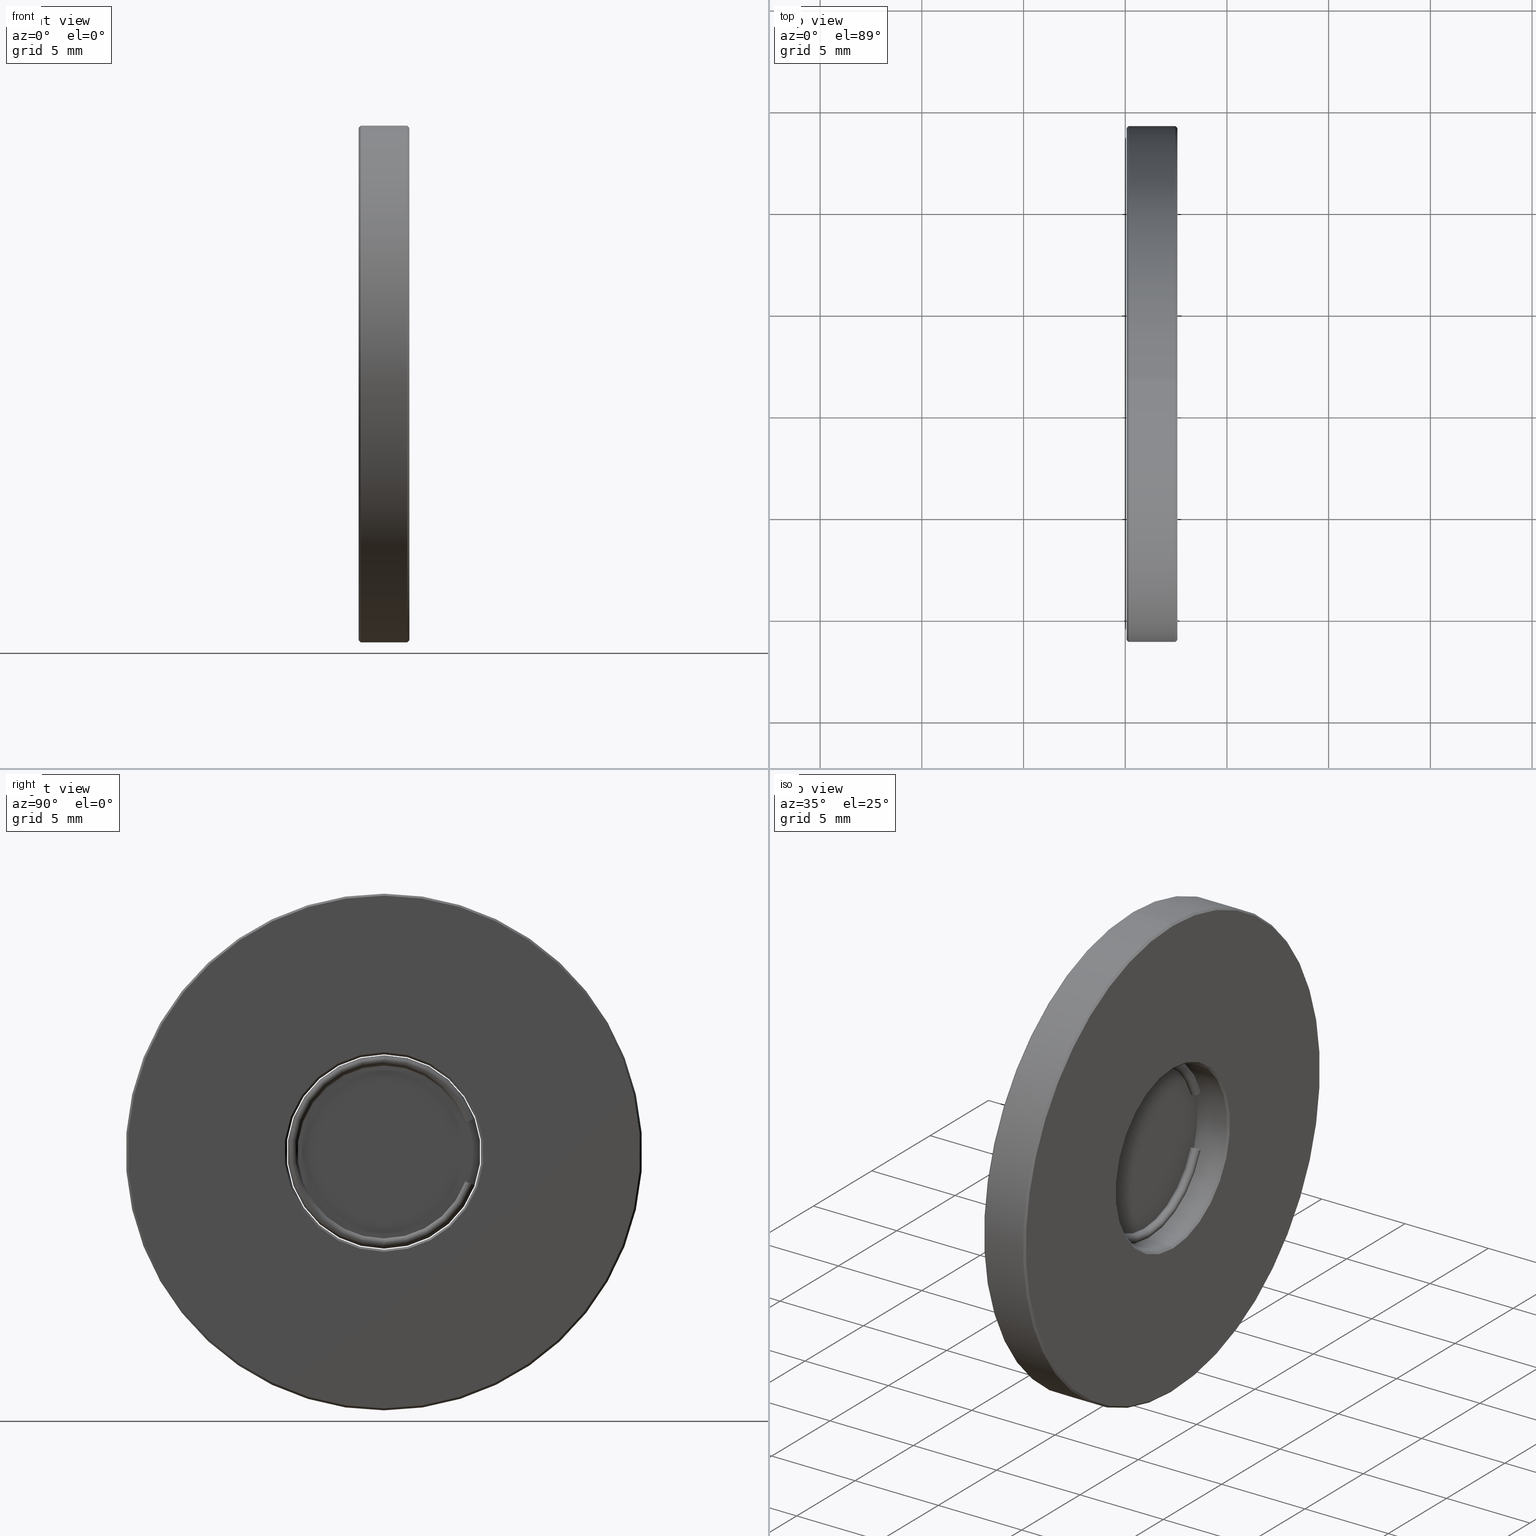
[diagram: canonical four-view strip — front | top / right | iso, engineering-drawing reading convention]
A machine part, canonical four-view strip (front | top / right | iso — engineering-drawing reading convention). The complete STEP part file that produces these views, byte-faithful:
ISO-10303-21;
HEADER;
FILE_DESCRIPTION (( 'STEP AP203' ),
    '1' );
FILE_NAME ('1.5.3.26_ZXO-1.0-30_�������30um��ֱ��25.4��1.0Ӣ�磩.STEP',
    '2021-07-27T01:08:17',
    ( 'China' ),
    ( 'Home' ),
    'SwSTEP 2.0',
    'SolidWorks 2018',
    '' );
FILE_SCHEMA (( 'CONFIG_CONTROL_DESIGN' ));
ENDSEC;

DATA;
#1 = SHAPE_DEFINITION_REPRESENTATION ( #275, #80 ) ;
#2 = ORIENTED_EDGE ( 'NONE', *, *, #723, .F. ) ;
#3 = ADVANCED_FACE ( 'NONE', ( #358 ), #343, .T. ) ;
#4 = EDGE_CURVE ( 'NONE', #362, #690, #654, .T. ) ;
#5 = CARTESIAN_POINT ( 'NONE',  ( -2.434863851253203482, 1.436758841085141070, 25.39999999999999858 ) ) ;
#6 = CARTESIAN_POINT ( 'NONE',  ( -4.934863851253203926, 1.436758841085141514, 21.59999999999999787 ) ) ;
#7 = AXIS2_PLACEMENT_3D ( 'NONE', #519, #462, #154 ) ;
#8 = DIRECTION ( 'NONE',  ( 3.061276722312011406E-15, 1.000000000000000000, 0.0000000000000000000 ) ) ;
#9 = ADVANCED_FACE ( 'NONE', ( #737 ), #104, .F. ) ;
#10 = DIRECTION ( 'NONE',  ( 1.000000000000000000, -2.997602166487921476E-15, -1.332267629309052594E-15 ) ) ;
#11 = FACE_BOUND ( 'NONE', #36, .T. ) ;
#12 = CARTESIAN_POINT ( 'NONE',  ( -4.834863851253204281, 1.436758841085141070, 25.39999999999999858 ) ) ;
#13 = AXIS2_PLACEMENT_3D ( 'NONE', #166, #42, #407 ) ;
#14 = VERTEX_POINT ( 'NONE', #58 ) ;
#15 = VERTEX_POINT ( 'NONE', #732 ) ;
#16 = DIRECTION ( 'NONE',  ( 0.0000000000000000000, 0.0000000000000000000, 1.000000000000000000 ) ) ;
#17 = DIRECTION ( 'NONE',  ( 0.0000000000000000000, 0.0000000000000000000, 1.000000000000000000 ) ) ;
#18 = CC_DESIGN_DATE_AND_TIME_ASSIGNMENT ( #571, #529, ( #484 ) ) ;
#19 = ADVANCED_FACE ( 'NONE', ( #289 ), #457, .T. ) ;
#20 = ADVANCED_FACE ( 'NONE', ( #126 ), #677, .F. ) ;
#21 = LINE ( 'NONE', #83, #465 ) ;
#22 = VERTEX_POINT ( 'NONE', #793 ) ;
#23 = ORIENTED_EDGE ( 'NONE', *, *, #113, .T. ) ;
#24 = APPROVAL_PERSON_ORGANIZATION ( #649, #59, #98 ) ;
#25 = UNCERTAINTY_MEASURE_WITH_UNIT (LENGTH_MEASURE( 1.000000000000000082E-05 ), #532, 'distance_accuracy_value', 'NONE');
#26 = AXIS2_PLACEMENT_3D ( 'NONE', #778, #788, #45 ) ;
#27 = ORIENTED_EDGE ( 'NONE', *, *, #731, .F. ) ;
#28 = DIRECTION ( 'NONE',  ( -1.332267629506340790E-15, -6.581527172670668233E-11, -1.000000000000000000 ) ) ;
#29 = EDGE_CURVE ( 'NONE', #196, #14, #540, .T. ) ;
#30 = VECTOR ( 'NONE', #583, 1000.000000000000114 ) ;
#31 = EDGE_LOOP ( 'NONE', ( #458, #760, #739, #225 ) ) ;
#32 = ORIENTED_EDGE ( 'NONE', *, *, #184, .F. ) ;
#33 = LINE ( 'NONE', #143, #404 ) ;
#34 = CC_DESIGN_PERSON_AND_ORGANIZATION_ASSIGNMENT ( #185, #219, ( #103 ) ) ;
#35 = PERSON ( 'δָ��', 'δָ��', 'δָ��', ('δָ��'), ('δָ��'), ('δָ��') ) ;
#36 = EDGE_LOOP ( 'NONE', ( #541, #773 ) ) ;
#37 = EDGE_LOOP ( 'NONE', ( #282, #333, #467, #32 ) ) ;
#38 = DIRECTION ( 'NONE',  ( 1.000000000000000000, 0.0000000000000000000, 0.0000000000000000000 ) ) ;
#39 = AXIS2_PLACEMENT_3D ( 'NONE', #292, #350, #777 ) ;
#40 = ORIENTED_EDGE ( 'NONE', *, *, #147, .F. ) ;
#41 = DIRECTION ( 'NONE',  ( -1.332267629506340790E-15, -6.581527172670668233E-11, -1.000000000000000000 ) ) ;
#42 = DIRECTION ( 'NONE',  ( 1.000000000000000000, 0.0000000000000000000, 0.0000000000000000000 ) ) ;
#43 = VERTEX_POINT ( 'NONE', #544 ) ;
#44 = DIRECTION ( 'NONE',  ( -0.7071067811865414665, 8.659560562355008046E-17, -0.7071067811865536790 ) ) ;
#45 = DIRECTION ( 'NONE',  ( -1.332267629506340790E-15, -6.581527172670668233E-11, -1.000000000000000000 ) ) ;
#46 = AXIS2_PLACEMENT_3D ( 'NONE', #12, #447, #135 ) ;
#47 = VERTEX_POINT ( 'NONE', #490 ) ;
#48 = COORDINATED_UNIVERSAL_TIME_OFFSET ( 8, 0, .AHEAD. ) ;
#49 = EDGE_CURVE ( 'NONE', #511, #105, #194, .T. ) ;
#50 = AXIS2_PLACEMENT_3D ( 'NONE', #570, #449, #252 ) ;
#51 = DIRECTION ( 'NONE',  ( 1.000000000000000000, 0.0000000000000000000, 0.0000000000000000000 ) ) ;
#52 = LINE ( 'NONE', #596, #526 ) ;
#53 = CARTESIAN_POINT ( 'NONE',  ( -4.284863851253205347, 1.436758841085140181, 25.39999999999999858 ) ) ;
#54 = ORIENTED_EDGE ( 'NONE', *, *, #363, .F. ) ;
#55 = VERTEX_POINT ( 'NONE', #667 ) ;
#56 = DIRECTION ( 'NONE',  ( 1.000000000000000000, -0.0000000000000000000, -0.0000000000000000000 ) ) ;
#57 = ADVANCED_FACE ( 'NONE', ( #521, #438 ), #125, .F. ) ;
#58 = CARTESIAN_POINT ( 'NONE',  ( -4.334863851253203393, 1.436758841085141736, 30.19999999999999929 ) ) ;
#59 = APPROVAL ( #474, 'δָ��' ) ;
#60 = DIRECTION ( 'NONE',  ( -1.000000000000000000, -0.0000000000000000000, -0.0000000000000000000 ) ) ;
#61 = DIRECTION ( 'NONE',  ( -1.000000000000000000, -0.0000000000000000000, -0.0000000000000000000 ) ) ;
#62 = ORIENTED_EDGE ( 'NONE', *, *, #742, .F. ) ;
#63 = LINE ( 'NONE', #188, #156 ) ;
#64 = ORIENTED_EDGE ( 'NONE', *, *, #269, .F. ) ;
#65 = CARTESIAN_POINT ( 'NONE',  ( -4.934863851253203926, 1.436758841085141070, 25.39999999999999858 ) ) ;
#66 = VERTEX_POINT ( 'NONE', #137 ) ;
#67 = CARTESIAN_POINT ( 'NONE',  ( -2.534863851253202682, 1.436758841085141736, 30.19999999999999929 ) ) ;
#68 = DIRECTION ( 'NONE',  ( 0.0000000000000000000, 0.0000000000000000000, -1.000000000000000000 ) ) ;
#69 = DIRECTION ( 'NONE',  ( -1.000000000000000000, 0.0000000000000000000, 0.0000000000000000000 ) ) ;
#70 = COORDINATED_UNIVERSAL_TIME_OFFSET ( 8, 0, .AHEAD. ) ;
#71 = ORIENTED_EDGE ( 'NONE', *, *, #206, .F. ) ;
#72 = PLANE ( 'NONE',  #203 ) ;
#73 = DIRECTION ( 'NONE',  ( 0.0000000000000000000, 0.0000000000000000000, 1.000000000000000000 ) ) ;
#74 = CIRCLE ( 'NONE', #395, 4.750000000000000888 ) ;
#75 = DIRECTION ( 'NONE',  ( -1.054662389422715826E-17, 0.3420201432638126371, -0.9396926208084220855 ) ) ;
#76 = ORIENTED_EDGE ( 'NONE', *, *, #341, .F. ) ;
#77 = AXIS2_PLACEMENT_3D ( 'NONE', #116, #366, #316 ) ;
#78 = DIRECTION ( 'NONE',  ( 1.000000000000000000, -2.997602166487921476E-15, -1.332267629309052594E-15 ) ) ;
#79 = ORIENTED_EDGE ( 'NONE', *, *, #302, .T. ) ;
#80 = MANIFOLD_SURFACE_SHAPE_REPRESENTATION ( '1.5.3.26_ZXO-1.0-30_�������30um��ֱ��25.4��1.0Ӣ�磩', ( #671, #770 ), #456 ) ;
#81 = AXIS2_PLACEMENT_3D ( 'NONE', #195, #676, #557 ) ;
#82 = DIRECTION ( 'NONE',  ( 2.305737067885818465E-15, -0.3420201433875043051, -0.9396926207634020978 ) ) ;
#83 = CARTESIAN_POINT ( 'NONE',  ( -4.934863851253203926, 1.436758841085141514, 29.10000000000000142 ) ) ;
#84 = CIRCLE ( 'NONE', #347, 0.01500000000000112355 ) ;
#85 = CIRCLE ( 'NONE', #587, 4.899999999999997691 ) ;
#86 = ORIENTED_EDGE ( 'NONE', *, *, #152, .F. ) ;
#87 = DIRECTION ( 'NONE',  ( 1.000000000000000000, -0.0000000000000000000, -0.0000000000000000000 ) ) ;
#88 = ORIENTED_EDGE ( 'NONE', *, *, #152, .T. ) ;
#89 = OPEN_SHELL ( 'NONE', ( #246 ) ) ;
#90 = CARTESIAN_POINT ( 'NONE',  ( -2.434863851253203482, 1.436758841085141736, 30.29999999999999716 ) ) ;
#91 = CIRCLE ( 'NONE', #241, 4.750000000000000888 ) ;
#92 = AXIS2_PLACEMENT_3D ( 'NONE', #372, #229, #123 ) ;
#93 = AXIS2_PLACEMENT_3D ( 'NONE', #272, #265, #278 ) ;
#94 = CIRCLE ( 'NONE', #648, 3.700000000000001954 ) ;
#95 = EDGE_CURVE ( 'NONE', #690, #420, #146, .T. ) ;
#96 = DIRECTION ( 'NONE',  ( 3.469446951953611033E-15, -0.9396926207634005435, 0.3420201433875083574 ) ) ;
#97 = ORIENTED_EDGE ( 'NONE', *, *, #208, .T. ) ;
#98 = APPROVAL_ROLE ( '' ) ;
#99 = DIRECTION ( 'NONE',  ( 1.000000000000000000, -0.0000000000000000000, -0.0000000000000000000 ) ) ;
#100 = DIRECTION ( 'NONE',  ( 0.0000000000000000000, 0.0000000000000000000, 1.000000000000000000 ) ) ;
#101 = PERSON_AND_ORGANIZATION_ROLE ( 'creator' ) ;
#102 = LINE ( 'NONE', #6, #513 ) ;
#103 = PRODUCT_DEFINITION_FORMATION_WITH_SPECIFIED_SOURCE ( '�κ�', '', #641, .NOT_KNOWN. ) ;
#104 = CONICAL_SURFACE ( 'NONE', #392, 3.800000000000001155, 0.7853981633974439491 ) ;
#105 = VERTEX_POINT ( 'NONE', #679 ) ;
#106 = VERTEX_POINT ( 'NONE', #239 ) ;
#107 = DIRECTION ( 'NONE',  ( 1.000000000000000000, -2.997602166487921476E-15, -1.332267629309052594E-15 ) ) ;
#108 = AXIS2_PLACEMENT_3D ( 'NONE', #244, #377, #499 ) ;
#109 = CONICAL_SURFACE ( 'NONE', #124, 3.800000000000001155, 0.7853981633974439491 ) ;
#110 = DIRECTION ( 'NONE',  ( 1.000000000000000000, 0.0000000000000000000, 0.0000000000000000000 ) ) ;
#111 =( NAMED_UNIT ( * ) PLANE_ANGLE_UNIT ( ) SI_UNIT ( $, .RADIAN. ) );
#112 = DIRECTION ( 'NONE',  ( 0.0000000000000000000, 0.0000000000000000000, -1.000000000000000000 ) ) ;
#113 = EDGE_CURVE ( 'NONE', #489, #420, #713, .T. ) ;
#114 = LINE ( 'NONE', #627, #607 ) ;
#115 = EDGE_LOOP ( 'NONE', ( #527, #327, #441, #181 ) ) ;
#116 = CARTESIAN_POINT ( 'NONE',  ( -18.51131405003491537, 1.436758841085141070, 25.39999999999999858 ) ) ;
#117 = PERSON_AND_ORGANIZATION ( #35, #549 ) ;
#118 = DIRECTION ( 'NONE',  ( 1.000000000000000000, 0.0000000000000000000, 0.0000000000000000000 ) ) ;
#119 = AXIS2_PLACEMENT_3D ( 'NONE', #324, #199, #381 ) ;
#120 = VECTOR ( 'NONE', #655, 1000.000000000000000 ) ;
#121 = CARTESIAN_POINT ( 'NONE',  ( -2.434863851253203482, 1.436758841085142402, 12.79999999999999716 ) ) ;
#122 = FACE_OUTER_BOUND ( 'NONE', #277, .T. ) ;
#123 = DIRECTION ( 'NONE',  ( 0.0000000000000000000, 0.0000000000000000000, -1.000000000000000000 ) ) ;
#124 = AXIS2_PLACEMENT_3D ( 'NONE', #279, #640, #281 ) ;
#125 = PLANE ( 'NONE',  #597 ) ;
#126 = FACE_OUTER_BOUND ( 'NONE', #235, .T. ) ;
#127 = CARTESIAN_POINT ( 'NONE',  ( -4.934863851253203926, 1.436758841085141070, 25.39999999999999858 ) ) ;
#128 = VERTEX_POINT ( 'NONE', #201 ) ;
#129 = CIRCLE ( 'NONE', #468, 4.750000000000000888 ) ;
#130 = APPROVAL_PERSON_ORGANIZATION ( #117, #213, #416 ) ;
#131 = CARTESIAN_POINT ( 'NONE',  ( -4.934863851253203926, 1.436758841085141070, 25.39999999999999858 ) ) ;
#132 = DIRECTION ( 'NONE',  ( 2.764278068315865563E-15, -0.9396926207634013206, 0.3420201433875065256 ) ) ;
#133 = TOROIDAL_SURFACE ( 'NONE', #782, 4.500000000000001776, 0.2499999999999994726 ) ;
#134 = ADVANCED_FACE ( 'NONE', ( #413 ), #675, .T. ) ;
#135 = DIRECTION ( 'NONE',  ( 0.0000000000000000000, 0.0000000000000000000, -1.000000000000000000 ) ) ;
#136 = EDGE_CURVE ( 'NONE', #375, #294, #554, .T. ) ;
#137 = CARTESIAN_POINT ( 'NONE',  ( -4.034863851253246203, 1.436758840772518919, 20.64999999999998437 ) ) ;
#138 = APPROVAL ( #651, 'δָ��' ) ;
#139 = VERTEX_POINT ( 'NONE', #90 ) ;
#140 = EDGE_CURVE ( 'NONE', #775, #220, #270, .T. ) ;
#141 = ADVANCED_FACE ( 'NONE', ( #396 ), #559, .T. ) ;
#142 = EDGE_LOOP ( 'NONE', ( #623, #638, #530, #71 ) ) ;
#143 = CARTESIAN_POINT ( 'NONE',  ( -4.934863851253203926, 1.436758841085141070, 21.69999999999999574 ) ) ;
#144 = ADVANCED_FACE ( 'NONE', ( #763 ), #109, .F. ) ;
#145 = CIRCLE ( 'NONE', #7, 0.2500000000000002220 ) ;
#146 = CIRCLE ( 'NONE', #486, 0.2500000000000002220 ) ;
#147 = EDGE_CURVE ( 'NONE', #106, #775, #616, .T. ) ;
#148 = EDGE_LOOP ( 'NONE', ( #339, #440 ) ) ;
#149 = CC_DESIGN_APPROVAL ( #138, ( #103 ) ) ;
#150 = ORIENTED_EDGE ( 'NONE', *, *, #298, .F. ) ;
#151 = CARTESIAN_POINT ( 'NONE',  ( -4.034863851253234657, 1.436758841397764552, 30.14999999999998437 ) ) ;
#152 = EDGE_CURVE ( 'NONE', #55, #511, #594, .T. ) ;
#153 = CARTESIAN_POINT ( 'NONE',  ( -4.034863851253239986, 1.436758841085141514, 25.39999999999998437 ) ) ;
#154 = DIRECTION ( 'NONE',  ( 0.0000000000000000000, -6.581540867855999654E-11, -1.000000000000000000 ) ) ;
#155 = VECTOR ( 'NONE', #605, 1000.000000000000000 ) ;
#156 = VECTOR ( 'NONE', #741, 1000.000000000000000 ) ;
#157 = ORIENTED_EDGE ( 'NONE', *, *, #515, .T. ) ;
#158 = ORIENTED_EDGE ( 'NONE', *, *, #400, .T. ) ;
#159 = DIRECTION ( 'NONE',  ( -2.997602166400238009E-15, -1.000000000000000000, 6.581526990068181500E-11 ) ) ;
#160 = PLANE ( 'NONE',  #615 ) ;
#161 = CARTESIAN_POINT ( 'NONE',  ( -4.834863851253204281, 1.436758841085141070, 12.69999999999999929 ) ) ;
#162 = AXIS2_PLACEMENT_3D ( 'NONE', #243, #56, #233 ) ;
#163 = CIRCLE ( 'NONE', #238, 12.69999999999999929 ) ;
#164 = EDGE_CURVE ( 'NONE', #690, #66, #129, .T. ) ;
#165 = ORIENTED_EDGE ( 'NONE', *, *, #731, .T. ) ;
#166 = CARTESIAN_POINT ( 'NONE',  ( -4.934863851253203926, 1.436758841085141070, 25.39999999999999858 ) ) ;
#167 = DIRECTION ( 'NONE',  ( 0.7071067811865414665, 0.0000000000000000000, -0.7071067811865536790 ) ) ;
#168 = EDGE_LOOP ( 'NONE', ( #798, #792, #97, #40 ) ) ;
#169 = AXIS2_PLACEMENT_3D ( 'NONE', #131, #620, #68 ) ;
#170 = ORIENTED_EDGE ( 'NONE', *, *, #714, .T. ) ;
#171 = CALENDAR_DATE ( 2021, 27, 7 ) ;
#172 = CARTESIAN_POINT ( 'NONE',  ( -4.334863851253203393, 1.436758841085141070, 21.69999999999999574 ) ) ;
#173 = APPLICATION_CONTEXT ( 'configuration controlled 3d designs of mechanical parts and assemblies' ) ;
#174 = VERTEX_POINT ( 'NONE', #397 ) ;
#175 = AXIS2_PLACEMENT_3D ( 'NONE', #266, #69, #16 ) ;
#176 = ORIENTED_EDGE ( 'NONE', *, *, #322, .T. ) ;
#177 = CC_DESIGN_PERSON_AND_ORGANIZATION_ASSIGNMENT ( #482, #644, ( #103 ) ) ;
#178 = CIRCLE ( 'NONE', #287, 0.01500000000000112355 ) ;
#179 = DIRECTION ( 'NONE',  ( 0.0000000000000000000, 0.0000000000000000000, -1.000000000000000000 ) ) ;
#180 = OPEN_SHELL ( 'NONE', ( #569, #190, #3, #756, #197, #20, #681, #673 ) ) ;
#181 = ORIENTED_EDGE ( 'NONE', *, *, #113, .F. ) ;
#182 = DIRECTION ( 'NONE',  ( 0.7071067811865414665, 8.659560562355009279E-17, 0.7071067811865536790 ) ) ;
#183 = CARTESIAN_POINT ( 'NONE',  ( -4.284863851253205347, 1.436758841085140181, 25.39999999999999858 ) ) ;
#184 = EDGE_CURVE ( 'NONE', #15, #174, #460, .T. ) ;
#185 = PERSON_AND_ORGANIZATION ( #35, #549 ) ;
#186 = CARTESIAN_POINT ( 'NONE',  ( -4.034863851253226663, 5.430452479520951670, 26.85358560887114621 ) ) ;
#187 = AXIS2_PLACEMENT_3D ( 'NONE', #307, #668, #800 ) ;
#188 = CARTESIAN_POINT ( 'NONE',  ( -18.51131405003491537, 1.436758841085141070, 20.60000000000000142 ) ) ;
#189 = CARTESIAN_POINT ( 'NONE',  ( -4.034863851253261302, 5.665375634723053722, 26.93909064468709857 ) ) ;
#190 = ADVANCED_FACE ( 'NONE', ( #295 ), #785, .T. ) ;
#191 = CARTESIAN_POINT ( 'NONE',  ( -2.534863851253199574, 1.436758841085141070, 25.39999999999999858 ) ) ;
#192 = EDGE_CURVE ( 'NONE', #106, #66, #579, .T. ) ;
#193 = DIRECTION ( 'NONE',  ( 1.000000000000000000, -2.997602166487921476E-15, -1.332267629309052594E-15 ) ) ;
#194 = LINE ( 'NONE', #558, #779 ) ;
#195 = CARTESIAN_POINT ( 'NONE',  ( -4.934863851253203926, 1.436758841085141070, 25.39999999999999858 ) ) ;
#196 = VERTEX_POINT ( 'NONE', #525 ) ;
#197 = ADVANCED_FACE ( 'NONE', ( #442 ), #745, .T. ) ;
#198 = CARTESIAN_POINT ( 'NONE',  ( -4.034863851253261302, 5.665375634723053722, 26.93909064468709857 ) ) ;
#199 = DIRECTION ( 'NONE',  ( 1.000000000000000000, -0.0000000000000000000, -0.0000000000000000000 ) ) ;
#200 = CONICAL_SURFACE ( 'NONE', #703, 12.69999999999999929, 0.7853981633974569387 ) ;
#201 = CARTESIAN_POINT ( 'NONE',  ( -4.834863851253201616, 1.436758841085141070, 21.69999999999999574 ) ) ;
#202 = DIRECTION ( 'NONE',  ( 3.599659071901011181E-15, -0.9396926208084229737, -0.3420201432638104166 ) ) ;
#203 = AXIS2_PLACEMENT_3D ( 'NONE', #198, #522, #202 ) ;
#204 = ORIENTED_EDGE ( 'NONE', *, *, #305, .T. ) ;
#205 = LOCAL_TIME ( 9, 8, 17.00000000000000000, #48 ) ;
#206 = EDGE_CURVE ( 'NONE', #420, #106, #250, .T. ) ;
#207 = VERTEX_POINT ( 'NONE', #711 ) ;
#208 = EDGE_CURVE ( 'NONE', #220, #775, #419, .T. ) ;
#209 = DIRECTION ( 'NONE',  ( 3.469446951953611033E-15, -0.9396926207634005435, 0.3420201433875083574 ) ) ;
#210 = ORIENTED_EDGE ( 'NONE', *, *, #634, .F. ) ;
#211 = AXIS2_PLACEMENT_3D ( 'NONE', #700, #159, #535 ) ;
#212 = CARTESIAN_POINT ( 'NONE',  ( -4.034863851253261302, 5.665375634520459336, 23.86090935475617059 ) ) ;
#213 = APPROVAL ( #591, 'δָ��' ) ;
#214 = EDGE_CURVE ( 'NONE', #715, #511, #325, .T. ) ;
#215 = FACE_OUTER_BOUND ( 'NONE', #759, .T. ) ;
#216 = CARTESIAN_POINT ( 'NONE',  ( -2.434863851253203038, 1.436758841085141736, 30.29999999999999716 ) ) ;
#217 = VERTEX_POINT ( 'NONE', #705 ) ;
#218 = CARTESIAN_POINT ( 'NONE',  ( -4.284863851253205347, 1.436758841085140181, 25.39999999999999858 ) ) ;
#219 = PERSON_AND_ORGANIZATION_ROLE ( 'creator' ) ;
#220 = VERTEX_POINT ( 'NONE', #222 ) ;
#221 = DIRECTION ( 'NONE',  ( 1.000000000000000000, 0.0000000000000000000, 0.0000000000000000000 ) ) ;
#222 = CARTESIAN_POINT ( 'NONE',  ( -4.034863851253229328, 5.900298789711298397, 23.77540431890929895 ) ) ;
#223 = AXIS2_PLACEMENT_3D ( 'NONE', #660, #237, #662 ) ;
#224 = CONICAL_SURFACE ( 'NONE', #162, 12.69999999999999929, 0.7853981633974569387 ) ;
#225 = ORIENTED_EDGE ( 'NONE', *, *, #471, .F. ) ;
#226 = CARTESIAN_POINT ( 'NONE',  ( -4.034863851253239986, 1.436758841085141514, 25.39999999999998437 ) ) ;
#227 = DIRECTION ( 'NONE',  ( 2.921639538487253472E-15, 1.000000000000000000, 0.0000000000000000000 ) ) ;
#228 = EDGE_CURVE ( 'NONE', #14, #196, #771, .T. ) ;
#229 = DIRECTION ( 'NONE',  ( 1.000000000000000000, -0.0000000000000000000, -0.0000000000000000000 ) ) ;
#230 = APPLICATION_PROTOCOL_DEFINITION ( 'international standard', 'config_control_design', 1994, #173 ) ;
#231 = APPROVAL_DATE_TIME ( #452, #138 ) ;
#232 = EDGE_CURVE ( 'NONE', #501, #174, #599, .T. ) ;
#233 = DIRECTION ( 'NONE',  ( 0.0000000000000000000, 0.0000000000000000000, -1.000000000000000000 ) ) ;
#234 = CONICAL_SURFACE ( 'NONE', #93, 4.899999999999997691, 0.7853981633974439491 ) ;
#235 = EDGE_LOOP ( 'NONE', ( #510, #631 ) ) ;
#236 = DIRECTION ( 'NONE',  ( 1.000000000000000000, 0.0000000000000000000, 0.0000000000000000000 ) ) ;
#237 = DIRECTION ( 'NONE',  ( 1.000000000000000000, 0.0000000000000000000, 0.0000000000000000000 ) ) ;
#238 = AXIS2_PLACEMENT_3D ( 'NONE', #323, #555, #563 ) ;
#239 = CARTESIAN_POINT ( 'NONE',  ( -4.034863851253239986, 1.436758840805426596, 21.14999999999998437 ) ) ;
#240 = EDGE_CURVE ( 'NONE', #578, #139, #637, .T. ) ;
#241 = AXIS2_PLACEMENT_3D ( 'NONE', #183, #110, #321 ) ;
#242 = CYLINDRICAL_SURFACE ( 'NONE', #724, 4.799999999999998934 ) ;
#243 = CARTESIAN_POINT ( 'NONE',  ( -4.834863851253204281, 1.436758841085141070, 25.39999999999999858 ) ) ;
#244 = CARTESIAN_POINT ( 'NONE',  ( -2.434863851253203038, 1.436758841085141070, 25.39999999999999858 ) ) ;
#245 = ORIENTED_EDGE ( 'NONE', *, *, #572, .T. ) ;
#246 = ADVANCED_FACE ( 'NONE', ( #656, #11 ), #160, .T. ) ;
#247 = ORIENTED_EDGE ( 'NONE', *, *, #322, .F. ) ;
#248 = DIRECTION ( 'NONE',  ( 3.469446951953614189E-15, -0.9396926208084209753, -0.3420201432638159122 ) ) ;
#249 = DIRECTION ( 'NONE',  ( -1.000000000000000000, 0.0000000000000000000, 0.0000000000000000000 ) ) ;
#250 = CIRCLE ( 'NONE', #576, 4.250000000000001776 ) ;
#251 = CARTESIAN_POINT ( 'NONE',  ( -4.034863851253239986, 1.436758841085141514, 25.39999999999998437 ) ) ;
#252 = DIRECTION ( 'NONE',  ( 0.0000000000000000000, 0.0000000000000000000, 1.000000000000000000 ) ) ;
#253 = EDGE_CURVE ( 'NONE', #43, #361, #472, .T. ) ;
#254 = LINE ( 'NONE', #435, #476 ) ;
#255 = ADVANCED_FACE ( 'NONE', ( #434 ), #301, .F. ) ;
#256 = DIRECTION ( 'NONE',  ( 0.0000000000000000000, 0.0000000000000000000, -1.000000000000000000 ) ) ;
#257 = PRODUCT_RELATED_PRODUCT_CATEGORY ( 'detail', '', ( #641 ) ) ;
#258 = EDGE_CURVE ( 'NONE', #578, #697, #453, .T. ) ;
#259 = CARTESIAN_POINT ( 'NONE',  ( -4.034863851253245315, 1.436758841381310825, 29.89999999999998437 ) ) ;
#260 = ORIENTED_EDGE ( 'NONE', *, *, #797, .F. ) ;
#261 = DIRECTION ( 'NONE',  ( 1.000000000000000000, 0.0000000000000000000, 0.0000000000000000000 ) ) ;
#262 = CARTESIAN_POINT ( 'NONE',  ( -4.034863851253239986, 1.436758841085141514, 25.39999999999998437 ) ) ;
#263 = CARTESIAN_POINT ( 'NONE',  ( -4.284863851253205347, 1.436758841085140181, 30.14999999999999858 ) ) ;
#264 = DATE_AND_TIME ( #754, #431 ) ;
#265 = DIRECTION ( 'NONE',  ( 1.000000000000000000, -0.0000000000000000000, -0.0000000000000000000 ) ) ;
#266 = CARTESIAN_POINT ( 'NONE',  ( -2.434863851253203482, 1.436758841085141070, 25.39999999999999858 ) ) ;
#267 = CARTESIAN_POINT ( 'NONE',  ( -4.934863851253203926, 1.436758841085141070, 25.39999999999999858 ) ) ;
#268 = FACE_OUTER_BOUND ( 'NONE', #740, .T. ) ;
#269 = EDGE_CURVE ( 'NONE', #508, #715, #409, .T. ) ;
#270 = CIRCLE ( 'NONE', #768, 0.2500000000000002220 ) ;
#271 = CARTESIAN_POINT ( 'NONE',  ( -4.334863851253203393, 1.436758841085141070, 25.39999999999999858 ) ) ;
#272 = CARTESIAN_POINT ( 'NONE',  ( -2.434863851253203038, 1.436758841085141070, 25.39999999999999858 ) ) ;
#273 = AXIS2_PLACEMENT_3D ( 'NONE', #624, #383, #256 ) ;
#274 = ORIENTED_EDGE ( 'NONE', *, *, #136, .F. ) ;
#275 = PRODUCT_DEFINITION_SHAPE ( 'NONE', 'NONE',  #484 ) ;
#276 = AXIS2_PLACEMENT_3D ( 'NONE', #428, #433, #670 ) ;
#277 = EDGE_LOOP ( 'NONE', ( #592, #506, #625, #799 ) ) ;
#278 = DIRECTION ( 'NONE',  ( 0.0000000000000000000, 0.0000000000000000000, -1.000000000000000000 ) ) ;
#279 = CARTESIAN_POINT ( 'NONE',  ( -4.934863851253203926, 1.436758841085141070, 25.39999999999999858 ) ) ;
#280 = FACE_OUTER_BOUND ( 'NONE', #610, .T. ) ;
#281 = DIRECTION ( 'NONE',  ( 0.0000000000000000000, 0.0000000000000000000, 1.000000000000000000 ) ) ;
#282 = ORIENTED_EDGE ( 'NONE', *, *, #572, .F. ) ;
#283 = PERSON_AND_ORGANIZATION ( #35, #549 ) ;
#284 = LINE ( 'NONE', #507, #120 ) ;
#285 = CARTESIAN_POINT ( 'NONE',  ( -4.034863851253261302, 5.665375634520459336, 23.86090935475617059 ) ) ;
#286 = CARTESIAN_POINT ( 'NONE',  ( -4.034863851253239986, 1.436758841085141514, 25.39999999999998437 ) ) ;
#287 = AXIS2_PLACEMENT_3D ( 'NONE', #682, #749, #17 ) ;
#288 = FACE_OUTER_BOUND ( 'NONE', #664, .T. ) ;
#289 = FACE_OUTER_BOUND ( 'NONE', #646, .T. ) ;
#290 = AXIS2_PLACEMENT_3D ( 'NONE', #796, #436, #497 ) ;
#291 = ORIENTED_EDGE ( 'NONE', *, *, #4, .F. ) ;
#292 = CARTESIAN_POINT ( 'NONE',  ( -4.334863851253203393, 1.436758841085141070, 25.39999999999999858 ) ) ;
#293 = APPLICATION_PROTOCOL_DEFINITION ( 'international standard', 'config_control_design', 1994, #360 ) ;
#294 = VERTEX_POINT ( 'NONE', #319 ) ;
#295 = FACE_OUTER_BOUND ( 'NONE', #142, .T. ) ;
#296 = PERSON_AND_ORGANIZATION ( #35, #549 ) ;
#297 = DIRECTION ( 'NONE',  ( 0.0000000000000000000, 0.0000000000000000000, -1.000000000000000000 ) ) ;
#298 = EDGE_CURVE ( 'NONE', #174, #15, #604, .T. ) ;
#299 = MECHANICAL_CONTEXT ( 'NONE', #173, 'mechanical' ) ;
#300 = CIRCLE ( 'NONE', #46, 12.69999999999999929 ) ;
#301 = CONICAL_SURFACE ( 'NONE', #108, 4.899999999999997691, 0.7853981633974439491 ) ;
#302 = EDGE_CURVE ( 'NONE', #196, #697, #63, .T. ) ;
#303 = ORIENTED_EDGE ( 'NONE', *, *, #762, .T. ) ;
#304 = AXIS2_PLACEMENT_3D ( 'NONE', #335, #772, #352 ) ;
#305 = EDGE_CURVE ( 'NONE', #55, #791, #284, .T. ) ;
#306 = ORIENTED_EDGE ( 'NONE', *, *, #403, .F. ) ;
#307 = CARTESIAN_POINT ( 'NONE',  ( -2.434863851253203482, 1.436758841085141070, 25.39999999999999858 ) ) ;
#308 = EDGE_CURVE ( 'NONE', #139, #402, #85, .T. ) ;
#309 = CARTESIAN_POINT ( 'NONE',  ( -4.834863851253201616, 1.436758841085141514, 29.10000000000000142 ) ) ;
#310 = CIRCLE ( 'NONE', #331, 12.59999999999999787 ) ;
#311 = DIRECTION ( 'NONE',  ( 0.0000000000000000000, 0.0000000000000000000, -1.000000000000000000 ) ) ;
#312 = CARTESIAN_POINT ( 'NONE',  ( -4.934863851253203926, 1.436758841085141070, 25.39999999999999858 ) ) ;
#313 = EDGE_LOOP ( 'NONE', ( #393, #539 ) ) ;
#314 = EDGE_LOOP ( 'NONE', ( #260, #787, #613, #332 ) ) ;
#315 = CARTESIAN_POINT ( 'NONE',  ( -4.284863851253205347, 1.436758841085140181, 25.39999999999999858 ) ) ;
#316 = DIRECTION ( 'NONE',  ( 0.0000000000000000000, 0.0000000000000000000, -1.000000000000000000 ) ) ;
#317 = ADVANCED_FACE ( 'NONE', ( #621 ), #429, .F. ) ;
#318 = AXIS2_PLACEMENT_3D ( 'NONE', #491, #118, #494 ) ;
#319 = CARTESIAN_POINT ( 'NONE',  ( -4.334863851253203393, 1.436758841085141514, 29.10000000000000142 ) ) ;
#320 = ORIENTED_EDGE ( 'NONE', *, *, #29, .F. ) ;
#321 = DIRECTION ( 'NONE',  ( 0.0000000000000000000, 0.0000000000000000000, 1.000000000000000000 ) ) ;
#322 = EDGE_CURVE ( 'NONE', #511, #55, #719, .T. ) ;
#323 = CARTESIAN_POINT ( 'NONE',  ( -4.834863851253204281, 1.436758841085141070, 25.39999999999999858 ) ) ;
#324 = CARTESIAN_POINT ( 'NONE',  ( -2.534863851253202682, 1.436758841085141070, 25.39999999999999858 ) ) ;
#325 = LINE ( 'NONE', #480, #790 ) ;
#326 = ORIENTED_EDGE ( 'NONE', *, *, #49, .T. ) ;
#327 = ORIENTED_EDGE ( 'NONE', *, *, #4, .T. ) ;
#328 = DIRECTION ( 'NONE',  ( 0.0000000000000000000, 6.581540867855999654E-11, 1.000000000000000000 ) ) ;
#329 = CARTESIAN_POINT ( 'NONE',  ( -2.434863851253203482, 1.436758841085141070, 20.50000000000000000 ) ) ;
#330 = CIRCLE ( 'NONE', #652, 4.750000000000000888 ) ;
#331 = AXIS2_PLACEMENT_3D ( 'NONE', #127, #371, #179 ) ;
#332 = ORIENTED_EDGE ( 'NONE', *, *, #140, .T. ) ;
#333 = ORIENTED_EDGE ( 'NONE', *, *, #534, .F. ) ;
#334 = EDGE_LOOP ( 'NONE', ( #170, #601 ) ) ;
#335 = CARTESIAN_POINT ( 'NONE',  ( -4.334863851253203393, 1.436758841085141070, 25.39999999999999858 ) ) ;
#336 = EDGE_CURVE ( 'NONE', #417, #217, #91, .T. ) ;
#337 = LOCAL_TIME ( 9, 8, 17.00000000000000000, #632 ) ;
#338 = DIRECTION ( 'NONE',  ( -1.000000000000000000, -0.0000000000000000000, -0.0000000000000000000 ) ) ;
#339 = ORIENTED_EDGE ( 'NONE', *, *, #505, .T. ) ;
#340 = CARTESIAN_POINT ( 'NONE',  ( -18.51131405003491537, 1.436758841085141070, 25.39999999999999858 ) ) ;
#341 = EDGE_CURVE ( 'NONE', #508, #55, #766, .T. ) ;
#342 = EDGE_LOOP ( 'NONE', ( #589, #665 ) ) ;
#343 = TOROIDAL_SURFACE ( 'NONE', #432, 4.500000000000001776, 0.2499999999999994726 ) ;
#344 = ORIENTED_EDGE ( 'NONE', *, *, #463, .F. ) ;
#345 = ORIENTED_EDGE ( 'NONE', *, *, #423, .T. ) ;
#346 = AXIS2_PLACEMENT_3D ( 'NONE', #603, #236, #367 ) ;
#347 = AXIS2_PLACEMENT_3D ( 'NONE', #53, #430, #542 ) ;
#348 = DIRECTION ( 'NONE',  ( 1.000000000000000000, -0.0000000000000000000, -0.0000000000000000000 ) ) ;
#349 = EDGE_CURVE ( 'NONE', #402, #139, #758, .T. ) ;
#350 = DIRECTION ( 'NONE',  ( 1.000000000000000000, 0.0000000000000000000, 0.0000000000000000000 ) ) ;
#351 = FACE_OUTER_BOUND ( 'NONE', #168, .T. ) ;
#352 = DIRECTION ( 'NONE',  ( 0.0000000000000000000, 0.0000000000000000000, -1.000000000000000000 ) ) ;
#353 = AXIS2_PLACEMENT_3D ( 'NONE', #374, #504, #132 ) ;
#354 = EDGE_CURVE ( 'NONE', #47, #207, #330, .T. ) ;
#355 = DIRECTION ( 'NONE',  ( 0.0000000000000000000, 0.0000000000000000000, -1.000000000000000000 ) ) ;
#356 = AXIS2_PLACEMENT_3D ( 'NONE', #528, #221, #669 ) ;
#357 = DATE_TIME_ROLE ( 'classification_date' ) ;
#358 = FACE_OUTER_BOUND ( 'NONE', #115, .T. ) ;
#359 = AXIS2_PLACEMENT_3D ( 'NONE', #5, #443, #617 ) ;
#360 = APPLICATION_CONTEXT ( 'configuration controlled 3d designs of mechanical parts and assemblies' ) ;
#361 = VERTEX_POINT ( 'NONE', #730 ) ;
#362 = VERTEX_POINT ( 'NONE', #370 ) ;
#363 = EDGE_CURVE ( 'NONE', #489, #362, #437, .T. ) ;
#364 = CARTESIAN_POINT ( 'NONE',  ( -2.434863851253203038, 1.436758841085141070, 20.50000000000000000 ) ) ;
#365 = FACE_OUTER_BOUND ( 'NONE', #314, .T. ) ;
#366 = DIRECTION ( 'NONE',  ( 1.000000000000000000, 0.0000000000000000000, 0.0000000000000000000 ) ) ;
#367 = DIRECTION ( 'NONE',  ( 0.0000000000000000000, 0.0000000000000000000, -1.000000000000000000 ) ) ;
#368 = ORIENTED_EDGE ( 'NONE', *, *, #49, .F. ) ;
#369 = AXIS2_PLACEMENT_3D ( 'NONE', #550, #738, #373 ) ;
#370 = CARTESIAN_POINT ( 'NONE',  ( -4.034863851253225775, 5.900298789925161103, 27.02459568050305094 ) ) ;
#371 = DIRECTION ( 'NONE',  ( -1.000000000000000000, -0.0000000000000000000, -0.0000000000000000000 ) ) ;
#372 = CARTESIAN_POINT ( 'NONE',  ( -2.534863851253202682, 1.436758841085141070, 25.39999999999999858 ) ) ;
#373 = DIRECTION ( 'NONE',  ( 0.0000000000000000000, 0.0000000000000000000, -1.000000000000000000 ) ) ;
#374 = CARTESIAN_POINT ( 'NONE',  ( -4.034863851253261302, 5.665375634520459336, 23.86090935475617059 ) ) ;
#375 = VERTEX_POINT ( 'NONE', #172 ) ;
#376 = EDGE_CURVE ( 'NONE', #420, #690, #552, .T. ) ;
#377 = DIRECTION ( 'NONE',  ( 1.000000000000000000, -0.0000000000000000000, -0.0000000000000000000 ) ) ;
#378 = CARTESIAN_POINT ( 'NONE',  ( -4.034863851253239986, 1.436758841085141514, 25.39999999999998437 ) ) ;
#379 = DIRECTION ( 'NONE',  ( 0.0000000000000000000, 0.0000000000000000000, -1.000000000000000000 ) ) ;
#380 = APPROVAL_DATE_TIME ( #264, #213 ) ;
#381 = DIRECTION ( 'NONE',  ( 0.0000000000000000000, 0.0000000000000000000, -1.000000000000000000 ) ) ;
#382 = OPEN_SHELL ( 'NONE', ( #388 ) ) ;
#383 = DIRECTION ( 'NONE',  ( -1.000000000000000000, -0.0000000000000000000, -0.0000000000000000000 ) ) ;
#384 = CARTESIAN_POINT ( 'NONE',  ( -4.034863851253237321, 1.436758841364856876, 29.64999999999998437 ) ) ;
#385 = AXIS2_PLACEMENT_3D ( 'NONE', #695, #338, #464 ) ;
#386 = CC_DESIGN_APPROVAL ( #213, ( #595 ) ) ;
#387 = FACE_OUTER_BOUND ( 'NONE', #479, .T. ) ;
#388 = ADVANCED_FACE ( 'NONE', ( #789, #394 ), #451, .F. ) ;
#389 = EDGE_CURVE ( 'NONE', #697, #578, #687, .T. ) ;
#390 = ORIENTED_EDGE ( 'NONE', *, *, #376, .F. ) ;
#391 = VERTEX_POINT ( 'NONE', #564 ) ;
#392 = AXIS2_PLACEMENT_3D ( 'NONE', #65, #606, #548 ) ;
#393 = ORIENTED_EDGE ( 'NONE', *, *, #336, .T. ) ;
#394 = FACE_BOUND ( 'NONE', #148, .T. ) ;
#395 = AXIS2_PLACEMENT_3D ( 'NONE', #286, #586, #227 ) ;
#396 = FACE_OUTER_BOUND ( 'NONE', #478, .T. ) ;
#397 = CARTESIAN_POINT ( 'NONE',  ( -4.934863851253203926, 1.436758841085141070, 29.19999999999999929 ) ) ;
#398 = OPEN_SHELL ( 'NONE', ( #514, #255, #19, #509, #450, #9, #502, #317, #144, #57, #744, #141, #134, #512, #685, #691 ) ) ;
#399 = DIRECTION ( 'NONE',  ( 0.0000000000000000000, 0.0000000000000000000, -1.000000000000000000 ) ) ;
#400 = EDGE_CURVE ( 'NONE', #105, #791, #300, .T. ) ;
#401 = PERSON_AND_ORGANIZATION ( #35, #549 ) ;
#402 = VERTEX_POINT ( 'NONE', #329 ) ;
#403 = EDGE_CURVE ( 'NONE', #391, #105, #114, .T. ) ;
#404 = VECTOR ( 'NONE', #87, 1000.000000000000000 ) ;
#405 = ORIENTED_EDGE ( 'NONE', *, *, #553, .T. ) ;
#406 = VERTEX_POINT ( 'NONE', #424 ) ;
#407 = DIRECTION ( 'NONE',  ( 0.0000000000000000000, 0.0000000000000000000, -1.000000000000000000 ) ) ;
#408 = AXIS2_PLACEMENT_3D ( 'NONE', #733, #51, #602 ) ;
#409 = CIRCLE ( 'NONE', #547, 12.60000000000000142 ) ;
#410 = CIRCLE ( 'NONE', #318, 4.750000000000000888 ) ;
#411 = EDGE_CURVE ( 'NONE', #361, #43, #84, .T. ) ;
#412 = EDGE_LOOP ( 'NONE', ( #210, #245, #150, #752 ) ) ;
#413 = FACE_OUTER_BOUND ( 'NONE', #736, .T. ) ;
#414 = ORIENTED_EDGE ( 'NONE', *, *, #722, .F. ) ;
#415 = DIRECTION ( 'NONE',  ( 2.921639538487253472E-15, 1.000000000000000000, 0.0000000000000000000 ) ) ;
#416 = APPROVAL_ROLE ( '' ) ;
#417 = VERTEX_POINT ( 'NONE', #263 ) ;
#418 = APPROVAL_ROLE ( '' ) ;
#419 = CIRCLE ( 'NONE', #629, 0.2500000000000002220 ) ;
#420 = VERTEX_POINT ( 'NONE', #384 ) ;
#421 = PERSON_AND_ORGANIZATION_ROLE ( 'design_owner' ) ;
#422 = CIRCLE ( 'NONE', #273, 3.700000000000001954 ) ;
#423 = EDGE_CURVE ( 'NONE', #715, #508, #588, .T. ) ;
#424 = CARTESIAN_POINT ( 'NONE',  ( -4.934863851253203926, 1.436758841085141070, 12.80000000000000071 ) ) ;
#425 = ORIENTED_EDGE ( 'NONE', *, *, #269, .T. ) ;
#426 = ORIENTED_EDGE ( 'NONE', *, *, #258, .T. ) ;
#427 = EDGE_CURVE ( 'NONE', #14, #578, #254, .T. ) ;
#428 = CARTESIAN_POINT ( 'NONE',  ( -4.034863851253239986, 1.436758841085141514, 25.39999999999998437 ) ) ;
#429 = CYLINDRICAL_SURFACE ( 'NONE', #81, 3.700000000000001954 ) ;
#430 = DIRECTION ( 'NONE',  ( 1.000000000000000000, 0.0000000000000000000, 0.0000000000000000000 ) ) ;
#431 = LOCAL_TIME ( 9, 8, 17.00000000000000000, #70 ) ;
#432 = AXIS2_PLACEMENT_3D ( 'NONE', #251, #193, #743 ) ;
#433 = DIRECTION ( 'NONE',  ( 1.000000000000000000, -2.997602166487921476E-15, -1.332267629309052594E-15 ) ) ;
#434 = FACE_OUTER_BOUND ( 'NONE', #31, .T. ) ;
#435 = CARTESIAN_POINT ( 'NONE',  ( -18.51131405003491537, 1.436758841085141736, 30.19999999999999929 ) ) ;
#436 = DIRECTION ( 'NONE',  ( -1.000000000000000000, -0.0000000000000000000, -0.0000000000000000000 ) ) ;
#437 = CIRCLE ( 'NONE', #696, 0.2500000000000000000 ) ;
#438 = FACE_OUTER_BOUND ( 'NONE', #334, .T. ) ;
#439 = DIRECTION ( 'NONE',  ( 0.0000000000000000000, 0.0000000000000000000, 1.000000000000000000 ) ) ;
#440 = ORIENTED_EDGE ( 'NONE', *, *, #611, .T. ) ;
#441 = ORIENTED_EDGE ( 'NONE', *, *, #95, .T. ) ;
#442 = FACE_OUTER_BOUND ( 'NONE', #545, .T. ) ;
#443 = DIRECTION ( 'NONE',  ( -1.000000000000000000, 0.0000000000000000000, 0.0000000000000000000 ) ) ;
#444 = DIRECTION ( 'NONE',  ( -0.7071067811865506814, 8.659560562354895880E-17, -0.7071067811865443531 ) ) ;
#445 = DIRECTION ( 'NONE',  ( 1.000000000000000000, 0.0000000000000000000, 0.0000000000000000000 ) ) ;
#446 = EDGE_CURVE ( 'NONE', #217, #417, #410, .T. ) ;
#447 = DIRECTION ( 'NONE',  ( 1.000000000000000000, -0.0000000000000000000, -0.0000000000000000000 ) ) ;
#448 = CIRCLE ( 'NONE', #223, 0.01500000000000112355 ) ;
#449 = DIRECTION ( 'NONE',  ( 1.000000000000000000, 0.0000000000000000000, -0.0000000000000000000 ) ) ;
#450 = ADVANCED_FACE ( 'NONE', ( #288 ), #224, .T. ) ;
#451 = PLANE ( 'NONE',  #50 ) ;
#452 = DATE_AND_TIME ( #524, #205 ) ;
#453 = CIRCLE ( 'NONE', #92, 4.799999999999998934 ) ;
#454 = DIRECTION ( 'NONE',  ( 0.0000000000000000000, 0.0000000000000000000, -1.000000000000000000 ) ) ;
#455 = CARTESIAN_POINT ( 'NONE',  ( -2.434863851253203482, 1.436758841085141070, 38.00000000000000711 ) ) ;
#456 =( GEOMETRIC_REPRESENTATION_CONTEXT ( 3 ) GLOBAL_UNCERTAINTY_ASSIGNED_CONTEXT ( ( #25 ) ) GLOBAL_UNIT_ASSIGNED_CONTEXT ( ( #532, #111, #485 ) ) REPRESENTATION_CONTEXT ( 'NONE', 'WORKASPACE' ) );
#457 = CONICAL_SURFACE ( 'NONE', #359, 12.59999999999999964, 0.7853981633974569387 ) ;
#458 = ORIENTED_EDGE ( 'NONE', *, *, #258, .F. ) ;
#459 = ORIENTED_EDGE ( 'NONE', *, *, #308, .T. ) ;
#460 = CIRCLE ( 'NONE', #13, 3.800000000000001155 ) ;
#461 = CALENDAR_DATE ( 2021, 27, 7 ) ;
#462 = DIRECTION ( 'NONE',  ( -2.997602166400238009E-15, -1.000000000000000000, 6.581526990068181500E-11 ) ) ;
#463 = EDGE_CURVE ( 'NONE', #391, #406, #310, .T. ) ;
#464 = DIRECTION ( 'NONE',  ( 0.0000000000000000000, 0.0000000000000000000, 1.000000000000000000 ) ) ;
#465 = VECTOR ( 'NONE', #348, 1000.000000000000000 ) ;
#466 = VECTOR ( 'NONE', #473, 1000.000000000000000 ) ;
#467 = ORIENTED_EDGE ( 'NONE', *, *, #232, .T. ) ;
#468 = AXIS2_PLACEMENT_3D ( 'NONE', #531, #590, #415 ) ;
#469 = DIRECTION ( 'NONE',  ( 2.305737067885818465E-15, -0.3420201433875043051, -0.9396926207634020978 ) ) ;
#470 = ORIENTED_EDGE ( 'NONE', *, *, #515, .F. ) ;
#471 = EDGE_CURVE ( 'NONE', #697, #402, #794, .T. ) ;
#472 = CIRCLE ( 'NONE', #475, 0.01500000000000112355 ) ;
#473 = DIRECTION ( 'NONE',  ( 0.7071067811865505703, 8.659560562354895880E-17, 0.7071067811865444641 ) ) ;
#474 = APPROVAL_STATUS ( 'not_yet_approved' ) ;
#475 = AXIS2_PLACEMENT_3D ( 'NONE', #315, #561, #439 ) ;
#476 = VECTOR ( 'NONE', #600, 1000.000000000000000 ) ;
#477 = CARTESIAN_POINT ( 'NONE',  ( -4.934863851253203926, 1.436758841085141070, 29.19999999999999929 ) ) ;
#478 = EDGE_LOOP ( 'NONE', ( #633, #88, #326, #158 ) ) ;
#479 = EDGE_LOOP ( 'NONE', ( #291, #54, #23, #577 ) ) ;
#480 = CARTESIAN_POINT ( 'NONE',  ( -2.434863851253203482, 1.436758841085141070, 38.00000000000000000 ) ) ;
#481 = CARTESIAN_POINT ( 'NONE',  ( -4.034863851253229328, 5.430452479329598070, 23.94641439060304933 ) ) ;
#482 = PERSON_AND_ORGANIZATION ( #35, #549 ) ;
#483 = PERSON_AND_ORGANIZATION_ROLE ( 'classification_officer' ) ;
#484 = PRODUCT_DEFINITION ( 'δ֪', '', #103, #619 ) ;
#485 =( NAMED_UNIT ( * ) SI_UNIT ( $, .STERADIAN. ) SOLID_ANGLE_UNIT ( ) );
#486 = AXIS2_PLACEMENT_3D ( 'NONE', #518, #747, #684 ) ;
#487 = ORIENTED_EDGE ( 'NONE', *, *, #423, .F. ) ;
#488 = DIRECTION ( 'NONE',  ( 1.000000000000000000, -0.0000000000000000000, -0.0000000000000000000 ) ) ;
#489 = VERTEX_POINT ( 'NONE', #186 ) ;
#490 = CARTESIAN_POINT ( 'NONE',  ( -4.334863851253204281, 1.436758841085139515, 20.64999999999999858 ) ) ;
#491 = CARTESIAN_POINT ( 'NONE',  ( -4.284863851253205347, 1.436758841085140181, 25.39999999999999858 ) ) ;
#492 = CYLINDRICAL_SURFACE ( 'NONE', #694, 3.700000000000001954 ) ;
#493 = DIRECTION ( 'NONE',  ( -1.000000000000000000, -0.0000000000000000000, -0.0000000000000000000 ) ) ;
#494 = DIRECTION ( 'NONE',  ( 0.0000000000000000000, 0.0000000000000000000, 1.000000000000000000 ) ) ;
#495 = AXIS2_PLACEMENT_3D ( 'NONE', #267, #767, #399 ) ;
#496 = ORIENTED_EDGE ( 'NONE', *, *, #206, .T. ) ;
#497 = DIRECTION ( 'NONE',  ( 0.0000000000000000000, 0.0000000000000000000, -1.000000000000000000 ) ) ;
#498 = APPROVAL_DATE_TIME ( #720, #59 ) ;
#499 = DIRECTION ( 'NONE',  ( 0.0000000000000000000, 0.0000000000000000000, -1.000000000000000000 ) ) ;
#500 = AXIS2_PLACEMENT_3D ( 'NONE', #378, #78, #8 ) ;
#501 = VERTEX_POINT ( 'NONE', #309 ) ;
#502 = ADVANCED_FACE ( 'NONE', ( #735 ), #492, .F. ) ;
#503 = CARTESIAN_POINT ( 'NONE',  ( -2.434863851253203482, 1.436758841085141070, 25.39999999999999858 ) ) ;
#504 = DIRECTION ( 'NONE',  ( 2.305737067885825171E-15, -0.3420201433875065256, -0.9396926207634013206 ) ) ;
#505 = EDGE_CURVE ( 'NONE', #22, #568, #448, .T. ) ;
#506 = ORIENTED_EDGE ( 'NONE', *, *, #389, .F. ) ;
#507 = CARTESIAN_POINT ( 'NONE',  ( -2.434863851253203482, 1.436758841085142402, 12.69999999999999929 ) ) ;
#508 = VERTEX_POINT ( 'NONE', #121 ) ;
#509 = ADVANCED_FACE ( 'NONE', ( #710 ), #750, .T. ) ;
#510 = ORIENTED_EDGE ( 'NONE', *, *, #140, .F. ) ;
#511 = VERTEX_POINT ( 'NONE', #608 ) ;
#512 = ADVANCED_FACE ( 'NONE', ( #642, #268 ), #795, .T. ) ;
#513 = VECTOR ( 'NONE', #444, 1000.000000000000114 ) ;
#514 = ADVANCED_FACE ( 'NONE', ( #215 ), #573, .F. ) ;
#515 = EDGE_CURVE ( 'NONE', #791, #105, #163, .T. ) ;
#516 = ORIENTED_EDGE ( 'NONE', *, *, #214, .F. ) ;
#517 = ORIENTED_EDGE ( 'NONE', *, *, #400, .F. ) ;
#518 = CARTESIAN_POINT ( 'NONE',  ( -4.034863851253245315, 1.436758841381310825, 29.89999999999998437 ) ) ;
#519 = CARTESIAN_POINT ( 'NONE',  ( -4.034863851253234657, 1.436758840788972647, 20.89999999999998437 ) ) ;
#520 = AXIS2_PLACEMENT_3D ( 'NONE', #630, #574, #28 ) ;
#521 = FACE_BOUND ( 'NONE', #342, .T. ) ;
#522 = DIRECTION ( 'NONE',  ( -1.054662389421852547E-17, 0.3420201432638104166, -0.9396926208084229737 ) ) ;
#523 = AXIS2_PLACEMENT_3D ( 'NONE', #271, #698, #765 ) ;
#524 = CALENDAR_DATE ( 2021, 27, 7 ) ;
#525 = CARTESIAN_POINT ( 'NONE',  ( -4.334863851253203393, 1.436758841085141070, 20.60000000000000142 ) ) ;
#526 = VECTOR ( 'NONE', #167, 1000.000000000000000 ) ;
#527 = ORIENTED_EDGE ( 'NONE', *, *, #553, .F. ) ;
#528 = CARTESIAN_POINT ( 'NONE',  ( -4.334863851253204281, 1.436758841085140181, 25.39999999999999858 ) ) ;
#529 = DATE_TIME_ROLE ( 'creation_date' ) ;
#530 = ORIENTED_EDGE ( 'NONE', *, *, #678, .T. ) ;
#531 = CARTESIAN_POINT ( 'NONE',  ( -4.034863851253239986, 1.436758841085141514, 25.39999999999998437 ) ) ;
#532 =( LENGTH_UNIT ( ) NAMED_UNIT ( * ) SI_UNIT ( .MILLI., .METRE. ) );
#533 = ORIENTED_EDGE ( 'NONE', *, *, #164, .F. ) ;
#534 = EDGE_CURVE ( 'NONE', #501, #128, #94, .T. ) ;
#535 = DIRECTION ( 'NONE',  ( 0.0000000000000000000, -6.581540867855999654E-11, -1.000000000000000000 ) ) ;
#536 = CARTESIAN_POINT ( 'NONE',  ( 0.0000000000000000000, 0.0000000000000000000, 0.0000000000000000000 ) ) ;
#537 = AXIS2_PLACEMENT_3D ( 'NONE', #593, #774, #355 ) ;
#538 = DIRECTION ( 'NONE',  ( 3.061276722312011406E-15, 1.000000000000000000, 0.0000000000000000000 ) ) ;
#539 = ORIENTED_EDGE ( 'NONE', *, *, #446, .T. ) ;
#540 = CIRCLE ( 'NONE', #346, 4.799999999999998934 ) ;
#541 = ORIENTED_EDGE ( 'NONE', *, *, #411, .F. ) ;
#542 = DIRECTION ( 'NONE',  ( 0.0000000000000000000, 0.0000000000000000000, 1.000000000000000000 ) ) ;
#543 = CIRCLE ( 'NONE', #495, 12.59999999999999787 ) ;
#544 = CARTESIAN_POINT ( 'NONE',  ( -4.284863851253205347, 1.436758841085140181, 25.38499999999999801 ) ) ;
#545 = EDGE_LOOP ( 'NONE', ( #533, #390, #496, #721 ) ) ;
#546 = ORIENTED_EDGE ( 'NONE', *, *, #354, .F. ) ;
#547 = AXIS2_PLACEMENT_3D ( 'NONE', #802, #445, #716 ) ;
#548 = DIRECTION ( 'NONE',  ( 0.0000000000000000000, 0.0000000000000000000, 1.000000000000000000 ) ) ;
#549 = ORGANIZATION ( 'δָ��', 'δָ��', '' ) ;
#550 = CARTESIAN_POINT ( 'NONE',  ( -2.434863851253203482, 1.436758841085141070, 25.39999999999999858 ) ) ;
#551 = CARTESIAN_POINT ( 'NONE',  ( -2.434863851253203482, 1.436758841085142402, 12.79999999999999716 ) ) ;
#552 = CIRCLE ( 'NONE', #786, 0.2500000000000002220 ) ;
#553 = EDGE_CURVE ( 'NONE', #362, #489, #598, .T. ) ;
#554 = CIRCLE ( 'NONE', #523, 3.700000000000001954 ) ;
#555 = DIRECTION ( 'NONE',  ( 1.000000000000000000, -0.0000000000000000000, -0.0000000000000000000 ) ) ;
#556 = CC_DESIGN_APPROVAL ( #59, ( #484 ) ) ;
#557 = DIRECTION ( 'NONE',  ( 0.0000000000000000000, 0.0000000000000000000, -1.000000000000000000 ) ) ;
#558 = CARTESIAN_POINT ( 'NONE',  ( -2.434863851253203482, 1.436758841085141070, 38.09999999999999432 ) ) ;
#559 = CYLINDRICAL_SURFACE ( 'NONE', #385, 12.69999999999999574 ) ;
#560 = COORDINATED_UNIVERSAL_TIME_OFFSET ( 8, 0, .AHEAD. ) ;
#561 = DIRECTION ( 'NONE',  ( 1.000000000000000000, 0.0000000000000000000, 0.0000000000000000000 ) ) ;
#562 = AXIS2_PLACEMENT_3D ( 'NONE', #653, #585, #41 ) ;
#563 = DIRECTION ( 'NONE',  ( 0.0000000000000000000, 0.0000000000000000000, -1.000000000000000000 ) ) ;
#564 = CARTESIAN_POINT ( 'NONE',  ( -4.934863851253203926, 1.436758841085142402, 38.00000000000000000 ) ) ;
#565 = FACE_OUTER_BOUND ( 'NONE', #567, .T. ) ;
#566 = DIRECTION ( 'NONE',  ( 3.469446951953614189E-15, -0.9396926208084209753, -0.3420201432638159122 ) ) ;
#567 = EDGE_LOOP ( 'NONE', ( #689, #320, #79, #657 ) ) ;
#568 = VERTEX_POINT ( 'NONE', #728 ) ;
#569 = ADVANCED_FACE ( 'NONE', ( #351 ), #133, .T. ) ;
#570 = CARTESIAN_POINT ( 'NONE',  ( -4.334863851253204281, 1.436758841085140181, 25.39999999999999858 ) ) ;
#571 = DATE_AND_TIME ( #729, #746 ) ;
#572 = EDGE_CURVE ( 'NONE', #128, #15, #102, .T. ) ;
#573 = CYLINDRICAL_SURFACE ( 'NONE', #77, 4.799999999999998934 ) ;
#574 = DIRECTION ( 'NONE',  ( 1.000000000000000000, -2.997602166487921476E-15, -1.332267629309052594E-15 ) ) ;
#575 = ORIENTED_EDGE ( 'NONE', *, *, #714, .F. ) ;
#576 = AXIS2_PLACEMENT_3D ( 'NONE', #784, #702, #538 ) ;
#577 = ORIENTED_EDGE ( 'NONE', *, *, #376, .T. ) ;
#578 = VERTEX_POINT ( 'NONE', #67 ) ;
#579 = CIRCLE ( 'NONE', #211, 0.2500000000000002220 ) ;
#580 = CIRCLE ( 'NONE', #304, 3.700000000000001954 ) ;
#581 = CARTESIAN_POINT ( 'NONE',  ( -4.834863851253204281, 1.436758841085141070, 25.39999999999999858 ) ) ;
#582 = ORIENTED_EDGE ( 'NONE', *, *, #302, .F. ) ;
#583 = DIRECTION ( 'NONE',  ( -0.7071067811865506814, 0.0000000000000000000, 0.7071067811865443531 ) ) ;
#584 = APPROVAL_PERSON_ORGANIZATION ( #401, #138, #418 ) ;
#585 = DIRECTION ( 'NONE',  ( 1.000000000000000000, -2.997602166487921476E-15, -1.332267629309052594E-15 ) ) ;
#586 = DIRECTION ( 'NONE',  ( 1.000000000000000000, -2.997602166487921476E-15, -1.332267629309052594E-15 ) ) ;
#587 = AXIS2_PLACEMENT_3D ( 'NONE', #503, #60, #297 ) ;
#588 = CIRCLE ( 'NONE', #408, 12.60000000000000142 ) ;
#589 = ORIENTED_EDGE ( 'NONE', *, *, #298, .T. ) ;
#590 = DIRECTION ( 'NONE',  ( 1.000000000000000000, -2.997602166487921476E-15, -1.332267629309052594E-15 ) ) ;
#591 = APPROVAL_STATUS ( 'not_yet_approved' ) ;
#592 = ORIENTED_EDGE ( 'NONE', *, *, #240, .F. ) ;
#593 = CARTESIAN_POINT ( 'NONE',  ( -2.534863851253199574, 1.436758841085141070, 25.39999999999999858 ) ) ;
#594 = CIRCLE ( 'NONE', #537, 12.69999999999999929 ) ;
#595 = SECURITY_CLASSIFICATION ( '', '', #781 ) ;
#596 = CARTESIAN_POINT ( 'NONE',  ( -4.834863851253204281, 1.436758841085141070, 12.69999999999999929 ) ) ;
#597 = AXIS2_PLACEMENT_3D ( 'NONE', #312, #261, #454 ) ;
#598 = CIRCLE ( 'NONE', #755, 0.2500000000000000000 ) ;
#599 = LINE ( 'NONE', #477, #30 ) ;
#600 = DIRECTION ( 'NONE',  ( 1.000000000000000000, 0.0000000000000000000, 0.0000000000000000000 ) ) ;
#601 = ORIENTED_EDGE ( 'NONE', *, *, #463, .T. ) ;
#602 = DIRECTION ( 'NONE',  ( 0.0000000000000000000, 0.0000000000000000000, -1.000000000000000000 ) ) ;
#603 = CARTESIAN_POINT ( 'NONE',  ( -4.334863851253203393, 1.436758841085141070, 25.39999999999999858 ) ) ;
#604 = CIRCLE ( 'NONE', #169, 3.800000000000001155 ) ;
#605 = DIRECTION ( 'NONE',  ( 0.7071067811865505703, 0.0000000000000000000, -0.7071067811865444641 ) ) ;
#606 = DIRECTION ( 'NONE',  ( -1.000000000000000000, -0.0000000000000000000, -0.0000000000000000000 ) ) ;
#607 = VECTOR ( 'NONE', #182, 1000.000000000000000 ) ;
#608 = CARTESIAN_POINT ( 'NONE',  ( -2.534863851253199574, 1.436758841085141070, 38.09999999999999432 ) ) ;
#609 = CC_DESIGN_PERSON_AND_ORGANIZATION_ASSIGNMENT ( #764, #421, ( #641 ) ) ;
#610 = EDGE_LOOP ( 'NONE', ( #761, #405 ) ) ;
#611 = EDGE_CURVE ( 'NONE', #568, #22, #178, .T. ) ;
#612 = ORIENTED_EDGE ( 'NONE', *, *, #723, .T. ) ;
#613 = ORIENTED_EDGE ( 'NONE', *, *, #147, .T. ) ;
#614 = CARTESIAN_POINT ( 'NONE',  ( -4.934863851253203926, 1.436758841085141070, 25.39999999999999858 ) ) ;
#615 = AXIS2_PLACEMENT_3D ( 'NONE', #218, #643, #100 ) ;
#616 = CIRCLE ( 'NONE', #666, 4.250000000000001776 ) ;
#617 = DIRECTION ( 'NONE',  ( 0.0000000000000000000, 0.0000000000000000000, 1.000000000000000000 ) ) ;
#618 = LOCAL_TIME ( 9, 8, 17.00000000000000000, #560 ) ;
#619 = DESIGN_CONTEXT ( 'detailed design', #360, 'design' ) ;
#620 = DIRECTION ( 'NONE',  ( 1.000000000000000000, 0.0000000000000000000, 0.0000000000000000000 ) ) ;
#621 = FACE_OUTER_BOUND ( 'NONE', #726, .T. ) ;
#622 = CARTESIAN_POINT ( 'NONE',  ( -4.334863851253204281, 1.436758841085140181, 25.39999999999999858 ) ) ;
#623 = ORIENTED_EDGE ( 'NONE', *, *, #95, .F. ) ;
#624 = CARTESIAN_POINT ( 'NONE',  ( -4.834863851253201616, 1.436758841085141070, 25.39999999999999858 ) ) ;
#625 = ORIENTED_EDGE ( 'NONE', *, *, #471, .T. ) ;
#626 = CARTESIAN_POINT ( 'NONE',  ( -4.834863851253201616, 1.436758841085141070, 25.39999999999999858 ) ) ;
#627 = CARTESIAN_POINT ( 'NONE',  ( -4.834863851253204281, 1.436758841085142402, 38.09999999999999432 ) ) ;
#628 = FACE_OUTER_BOUND ( 'NONE', #783, .T. ) ;
#629 = AXIS2_PLACEMENT_3D ( 'NONE', #285, #469, #96 ) ;
#630 = CARTESIAN_POINT ( 'NONE',  ( -4.034863851253239986, 1.436758841085141514, 25.39999999999998437 ) ) ;
#631 = ORIENTED_EDGE ( 'NONE', *, *, #208, .F. ) ;
#632 = COORDINATED_UNIVERSAL_TIME_OFFSET ( 8, 0, .AHEAD. ) ;
#633 = ORIENTED_EDGE ( 'NONE', *, *, #305, .F. ) ;
#634 = EDGE_CURVE ( 'NONE', #128, #501, #422, .T. ) ;
#635 = CC_DESIGN_PERSON_AND_ORGANIZATION_ASSIGNMENT ( #283, #483, ( #595 ) ) ;
#636 = AXIS2_PLACEMENT_3D ( 'NONE', #226, #107, #709 ) ;
#637 = LINE ( 'NONE', #216, #466 ) ;
#638 = ORIENTED_EDGE ( 'NONE', *, *, #164, .T. ) ;
#639 = ORIENTED_EDGE ( 'NONE', *, *, #403, .T. ) ;
#640 = DIRECTION ( 'NONE',  ( -1.000000000000000000, -0.0000000000000000000, -0.0000000000000000000 ) ) ;
#641 = PRODUCT ( '1.5.3.26_ZXO-1.0-30_�������30um��ֱ��25.4��1.0Ӣ�磩', '1.5.3.26_ZXO-1.0-30_�������30um��ֱ��25.4��1.0Ӣ�磩', '', ( #299 ) ) ;
#642 = FACE_BOUND ( 'NONE', #712, .T. ) ;
#643 = DIRECTION ( 'NONE',  ( 1.000000000000000000, 0.0000000000000000000, -0.0000000000000000000 ) ) ;
#644 = PERSON_AND_ORGANIZATION_ROLE ( 'design_supplier' ) ;
#645 = ORIENTED_EDGE ( 'NONE', *, *, #762, .F. ) ;
#646 = EDGE_LOOP ( 'NONE', ( #64, #650, #247, #516 ) ) ;
#647 = DIRECTION ( 'NONE',  ( -0.7071067811865414665, 0.0000000000000000000, 0.7071067811865536790 ) ) ;
#648 = AXIS2_PLACEMENT_3D ( 'NONE', #626, #61, #379 ) ;
#649 = PERSON_AND_ORGANIZATION ( #35, #549 ) ;
#650 = ORIENTED_EDGE ( 'NONE', *, *, #341, .T. ) ;
#651 = APPROVAL_STATUS ( 'not_yet_approved' ) ;
#652 = AXIS2_PLACEMENT_3D ( 'NONE', #622, #748, #73 ) ;
#653 = CARTESIAN_POINT ( 'NONE',  ( -4.034863851253239986, 1.436758841085141514, 25.39999999999998437 ) ) ;
#654 = CIRCLE ( 'NONE', #276, 4.750000000000000888 ) ;
#655 = DIRECTION ( 'NONE',  ( -1.000000000000000000, -0.0000000000000000000, -0.0000000000000000000 ) ) ;
#656 = FACE_OUTER_BOUND ( 'NONE', #313, .T. ) ;
#657 = ORIENTED_EDGE ( 'NONE', *, *, #389, .T. ) ;
#658 = ORIENTED_EDGE ( 'NONE', *, *, #634, .T. ) ;
#659 = EDGE_LOOP ( 'NONE', ( #176, #204, #157, #368 ) ) ;
#660 = CARTESIAN_POINT ( 'NONE',  ( -4.334863851253204281, 1.436758841085140181, 25.39999999999999858 ) ) ;
#661 = TOROIDAL_SURFACE ( 'NONE', #26, 4.500000000000001776, 0.2499999999999994726 ) ;
#662 = DIRECTION ( 'NONE',  ( 0.0000000000000000000, 0.0000000000000000000, 1.000000000000000000 ) ) ;
#663 = ORIENTED_EDGE ( 'NONE', *, *, #427, .T. ) ;
#664 = EDGE_LOOP ( 'NONE', ( #344, #639, #470, #645 ) ) ;
#665 = ORIENTED_EDGE ( 'NONE', *, *, #184, .T. ) ;
#666 = AXIS2_PLACEMENT_3D ( 'NONE', #153, #780, #776 ) ;
#667 = CARTESIAN_POINT ( 'NONE',  ( -2.534863851253199574, 1.436758841085142402, 12.69999999999999929 ) ) ;
#668 = DIRECTION ( 'NONE',  ( -1.000000000000000000, -0.0000000000000000000, -0.0000000000000000000 ) ) ;
#669 = DIRECTION ( 'NONE',  ( 0.0000000000000000000, 0.0000000000000000000, 1.000000000000000000 ) ) ;
#670 = DIRECTION ( 'NONE',  ( 2.921639538487253472E-15, 1.000000000000000000, 0.0000000000000000000 ) ) ;
#671 = SHELL_BASED_SURFACE_MODEL ( 'NONE', ( #398, #382, #89, #180 ) );
#672 = DIRECTION ( 'NONE',  ( 0.0000000000000000000, 0.0000000000000000000, -1.000000000000000000 ) ) ;
#673 = ADVANCED_FACE ( 'NONE', ( #280 ), #72, .T. ) ;
#674 = CC_DESIGN_DATE_AND_TIME_ASSIGNMENT ( #706, #357, ( #595 ) ) ;
#675 = CONICAL_SURFACE ( 'NONE', #175, 12.59999999999999964, 0.7853981633974569387 ) ;
#676 = DIRECTION ( 'NONE',  ( 1.000000000000000000, -0.0000000000000000000, -0.0000000000000000000 ) ) ;
#677 = PLANE ( 'NONE',  #353 ) ;
#678 = EDGE_CURVE ( 'NONE', #66, #106, #145, .T. ) ;
#679 = CARTESIAN_POINT ( 'NONE',  ( -4.834863851253204281, 1.436758841085142402, 38.09999999999999432 ) ) ;
#680 = COORDINATED_UNIVERSAL_TIME_OFFSET ( 8, 0, .AHEAD. ) ;
#681 = ADVANCED_FACE ( 'NONE', ( #365 ), #725, .T. ) ;
#682 = CARTESIAN_POINT ( 'NONE',  ( -4.334863851253204281, 1.436758841085140181, 25.39999999999999858 ) ) ;
#683 = CARTESIAN_POINT ( 'NONE',  ( -4.034863851253261302, 5.665375634723053722, 26.93909064468709857 ) ) ;
#684 = DIRECTION ( 'NONE',  ( 0.0000000000000000000, 6.581540867855999654E-11, 1.000000000000000000 ) ) ;
#685 = ADVANCED_FACE ( 'NONE', ( #122 ), #234, .F. ) ;
#686 = DIRECTION ( 'NONE',  ( -1.054662389422715826E-17, 0.3420201432638126371, -0.9396926208084220855 ) ) ;
#687 = CIRCLE ( 'NONE', #119, 4.799999999999998934 ) ;
#688 = DIRECTION ( 'NONE',  ( -1.332267629506340790E-15, -6.581527172670668233E-11, -1.000000000000000000 ) ) ;
#689 = ORIENTED_EDGE ( 'NONE', *, *, #427, .F. ) ;
#690 = VERTEX_POINT ( 'NONE', #151 ) ;
#691 = ADVANCED_FACE ( 'NONE', ( #565 ), #242, .F. ) ;
#692 = DIRECTION ( 'NONE',  ( 1.000000000000000000, 0.0000000000000000000, 0.0000000000000000000 ) ) ;
#693 = EDGE_LOOP ( 'NONE', ( #62, #546 ) ) ;
#694 = AXIS2_PLACEMENT_3D ( 'NONE', #614, #488, #672 ) ;
#695 = CARTESIAN_POINT ( 'NONE',  ( -2.434863851253203482, 1.436758841085141070, 25.39999999999999858 ) ) ;
#696 = AXIS2_PLACEMENT_3D ( 'NONE', #683, #686, #566 ) ;
#697 = VERTEX_POINT ( 'NONE', #757 ) ;
#698 = DIRECTION ( 'NONE',  ( -1.000000000000000000, -0.0000000000000000000, -0.0000000000000000000 ) ) ;
#699 = DIRECTION ( 'NONE',  ( 0.0000000000000000000, 0.0000000000000000000, -1.000000000000000000 ) ) ;
#700 = CARTESIAN_POINT ( 'NONE',  ( -4.034863851253234657, 1.436758840788972647, 20.89999999999998437 ) ) ;
#701 = CIRCLE ( 'NONE', #356, 4.750000000000000888 ) ;
#702 = DIRECTION ( 'NONE',  ( 1.000000000000000000, -2.997602166487921476E-15, -1.332267629309052594E-15 ) ) ;
#703 = AXIS2_PLACEMENT_3D ( 'NONE', #581, #99, #112 ) ;
#704 = ORIENTED_EDGE ( 'NONE', *, *, #228, .F. ) ;
#705 = CARTESIAN_POINT ( 'NONE',  ( -4.284863851253205347, 1.436758841085139515, 20.64999999999999858 ) ) ;
#706 = DATE_AND_TIME ( #171, #337 ) ;
#707 = AXIS2_PLACEMENT_3D ( 'NONE', #191, #249, #311 ) ;
#708 = EDGE_LOOP ( 'NONE', ( #658, #165, #274, #2 ) ) ;
#709 = DIRECTION ( 'NONE',  ( -1.332267629506340790E-15, -6.581527172670668233E-11, -1.000000000000000000 ) ) ;
#710 = FACE_OUTER_BOUND ( 'NONE', #659, .T. ) ;
#711 = CARTESIAN_POINT ( 'NONE',  ( -4.334863851253204281, 1.436758841085140181, 30.14999999999999858 ) ) ;
#712 = EDGE_LOOP ( 'NONE', ( #727, #459 ) ) ;
#713 = CIRCLE ( 'NONE', #500, 4.250000000000001776 ) ;
#714 = EDGE_CURVE ( 'NONE', #406, #391, #543, .T. ) ;
#715 = VERTEX_POINT ( 'NONE', #455 ) ;
#716 = DIRECTION ( 'NONE',  ( 0.0000000000000000000, 0.0000000000000000000, -1.000000000000000000 ) ) ;
#717 = DIRECTION ( 'NONE',  ( 0.0000000000000000000, 0.0000000000000000000, 1.000000000000000000 ) ) ;
#718 = CC_DESIGN_SECURITY_CLASSIFICATION ( #595, ( #103 ) ) ;
#719 = CIRCLE ( 'NONE', #707, 12.69999999999999929 ) ;
#720 = DATE_AND_TIME ( #461, #618 ) ;
#721 = ORIENTED_EDGE ( 'NONE', *, *, #192, .T. ) ;
#722 = EDGE_CURVE ( 'NONE', #294, #375, #580, .T. ) ;
#723 = EDGE_CURVE ( 'NONE', #128, #375, #33, .T. ) ;
#724 = AXIS2_PLACEMENT_3D ( 'NONE', #340, #692, #699 ) ;
#725 = TOROIDAL_SURFACE ( 'NONE', #520, 4.500000000000001776, 0.2499999999999994726 ) ;
#726 = EDGE_LOOP ( 'NONE', ( #27, #801, #612, #414 ) ) ;
#727 = ORIENTED_EDGE ( 'NONE', *, *, #349, .T. ) ;
#728 = CARTESIAN_POINT ( 'NONE',  ( -4.334863851253204281, 1.436758841085140181, 25.38499999999999801 ) ) ;
#729 = CALENDAR_DATE ( 2021, 27, 7 ) ;
#730 = CARTESIAN_POINT ( 'NONE',  ( -4.284863851253205347, 1.436758841085140181, 25.41499999999999915 ) ) ;
#731 = EDGE_CURVE ( 'NONE', #501, #294, #21, .T. ) ;
#732 = CARTESIAN_POINT ( 'NONE',  ( -4.934863851253203926, 1.436758841085141514, 21.59999999999999787 ) ) ;
#733 = CARTESIAN_POINT ( 'NONE',  ( -2.434863851253203482, 1.436758841085141070, 25.39999999999999858 ) ) ;
#734 = CC_DESIGN_PERSON_AND_ORGANIZATION_ASSIGNMENT ( #296, #101, ( #484 ) ) ;
#735 = FACE_OUTER_BOUND ( 'NONE', #708, .T. ) ;
#736 = EDGE_LOOP ( 'NONE', ( #76, #487, #751, #86 ) ) ;
#737 = FACE_OUTER_BOUND ( 'NONE', #412, .T. ) ;
#738 = DIRECTION ( 'NONE',  ( 1.000000000000000000, 0.0000000000000000000, 0.0000000000000000000 ) ) ;
#739 = ORIENTED_EDGE ( 'NONE', *, *, #349, .F. ) ;
#740 = EDGE_LOOP ( 'NONE', ( #345, #425 ) ) ;
#741 = DIRECTION ( 'NONE',  ( 1.000000000000000000, 0.0000000000000000000, 0.0000000000000000000 ) ) ;
#742 = EDGE_CURVE ( 'NONE', #207, #47, #701, .T. ) ;
#743 = DIRECTION ( 'NONE',  ( -1.332267629506340790E-15, -6.581527172670668233E-11, -1.000000000000000000 ) ) ;
#744 = ADVANCED_FACE ( 'NONE', ( #628 ), #200, .T. ) ;
#745 = TOROIDAL_SURFACE ( 'NONE', #636, 4.500000000000001776, 0.2499999999999994726 ) ;
#746 = LOCAL_TIME ( 9, 8, 17.00000000000000000, #680 ) ;
#747 = DIRECTION ( 'NONE',  ( 2.997602166400237614E-15, 1.000000000000000000, -6.581539236536173561E-11 ) ) ;
#748 = DIRECTION ( 'NONE',  ( 1.000000000000000000, 0.0000000000000000000, 0.0000000000000000000 ) ) ;
#749 = DIRECTION ( 'NONE',  ( 1.000000000000000000, 0.0000000000000000000, 0.0000000000000000000 ) ) ;
#750 = CYLINDRICAL_SURFACE ( 'NONE', #187, 12.69999999999999574 ) ;
#751 = ORIENTED_EDGE ( 'NONE', *, *, #214, .T. ) ;
#752 = ORIENTED_EDGE ( 'NONE', *, *, #232, .F. ) ;
#753 = DIRECTION ( 'NONE',  ( 2.997602166400237614E-15, 1.000000000000000000, -6.581539236536173561E-11 ) ) ;
#754 = CALENDAR_DATE ( 2021, 27, 7 ) ;
#755 = AXIS2_PLACEMENT_3D ( 'NONE', #189, #75, #248 ) ;
#756 = ADVANCED_FACE ( 'NONE', ( #387 ), #661, .T. ) ;
#757 = CARTESIAN_POINT ( 'NONE',  ( -2.534863851253202682, 1.436758841085141070, 20.60000000000000142 ) ) ;
#758 = CIRCLE ( 'NONE', #290, 4.899999999999997691 ) ;
#759 = EDGE_LOOP ( 'NONE', ( #704, #663, #426, #582 ) ) ;
#760 = ORIENTED_EDGE ( 'NONE', *, *, #240, .T. ) ;
#761 = ORIENTED_EDGE ( 'NONE', *, *, #363, .T. ) ;
#762 = EDGE_CURVE ( 'NONE', #406, #791, #52, .T. ) ;
#763 = FACE_OUTER_BOUND ( 'NONE', #37, .T. ) ;
#764 = PERSON_AND_ORGANIZATION ( #35, #549 ) ;
#765 = DIRECTION ( 'NONE',  ( 0.0000000000000000000, 0.0000000000000000000, -1.000000000000000000 ) ) ;
#766 = LINE ( 'NONE', #551, #769 ) ;
#767 = DIRECTION ( 'NONE',  ( -1.000000000000000000, -0.0000000000000000000, -0.0000000000000000000 ) ) ;
#768 = AXIS2_PLACEMENT_3D ( 'NONE', #212, #82, #209 ) ;
#769 = VECTOR ( 'NONE', #44, 1000.000000000000000 ) ;
#770 = AXIS2_PLACEMENT_3D ( 'NONE', #536, #717, #38 ) ;
#771 = CIRCLE ( 'NONE', #39, 4.799999999999998934 ) ;
#772 = DIRECTION ( 'NONE',  ( -1.000000000000000000, -0.0000000000000000000, -0.0000000000000000000 ) ) ;
#773 = ORIENTED_EDGE ( 'NONE', *, *, #253, .F. ) ;
#774 = DIRECTION ( 'NONE',  ( -1.000000000000000000, 0.0000000000000000000, 0.0000000000000000000 ) ) ;
#775 = VERTEX_POINT ( 'NONE', #481 ) ;
#776 = DIRECTION ( 'NONE',  ( 3.061276722312011406E-15, 1.000000000000000000, 0.0000000000000000000 ) ) ;
#777 = DIRECTION ( 'NONE',  ( 0.0000000000000000000, 0.0000000000000000000, -1.000000000000000000 ) ) ;
#778 = CARTESIAN_POINT ( 'NONE',  ( -4.034863851253239986, 1.436758841085141514, 25.39999999999998437 ) ) ;
#779 = VECTOR ( 'NONE', #493, 1000.000000000000000 ) ;
#780 = DIRECTION ( 'NONE',  ( 1.000000000000000000, -2.997602166487921476E-15, -1.332267629309052594E-15 ) ) ;
#781 = SECURITY_CLASSIFICATION_LEVEL ( 'unclassified' ) ;
#782 = AXIS2_PLACEMENT_3D ( 'NONE', #262, #10, #688 ) ;
#783 = EDGE_LOOP ( 'NONE', ( #306, #575, #303, #517 ) ) ;
#784 = CARTESIAN_POINT ( 'NONE',  ( -4.034863851253239986, 1.436758841085141514, 25.39999999999998437 ) ) ;
#785 = TOROIDAL_SURFACE ( 'NONE', #562, 4.500000000000001776, 0.2499999999999994726 ) ;
#786 = AXIS2_PLACEMENT_3D ( 'NONE', #259, #753, #328 ) ;
#787 = ORIENTED_EDGE ( 'NONE', *, *, #192, .F. ) ;
#788 = DIRECTION ( 'NONE',  ( 1.000000000000000000, -2.997602166487921476E-15, -1.332267629309052594E-15 ) ) ;
#789 = FACE_OUTER_BOUND ( 'NONE', #693, .T. ) ;
#790 = VECTOR ( 'NONE', #647, 1000.000000000000000 ) ;
#791 = VERTEX_POINT ( 'NONE', #161 ) ;
#792 = ORIENTED_EDGE ( 'NONE', *, *, #797, .T. ) ;
#793 = CARTESIAN_POINT ( 'NONE',  ( -4.334863851253204281, 1.436758841085140181, 25.41499999999999915 ) ) ;
#794 = LINE ( 'NONE', #364, #155 ) ;
#795 = PLANE ( 'NONE',  #369 ) ;
#796 = CARTESIAN_POINT ( 'NONE',  ( -2.434863851253203482, 1.436758841085141070, 25.39999999999999858 ) ) ;
#797 = EDGE_CURVE ( 'NONE', #66, #220, #74, .T. ) ;
#798 = ORIENTED_EDGE ( 'NONE', *, *, #678, .F. ) ;
#799 = ORIENTED_EDGE ( 'NONE', *, *, #308, .F. ) ;
#800 = DIRECTION ( 'NONE',  ( 0.0000000000000000000, 0.0000000000000000000, 1.000000000000000000 ) ) ;
#801 = ORIENTED_EDGE ( 'NONE', *, *, #534, .T. ) ;
#802 = CARTESIAN_POINT ( 'NONE',  ( -2.434863851253203482, 1.436758841085141070, 25.39999999999999858 ) ) ;
ENDSEC;
END-ISO-10303-21;
